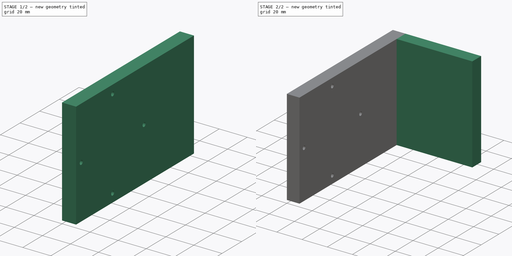
[diagram: build sequence overview — one tinted view per stage of 2, left to right]
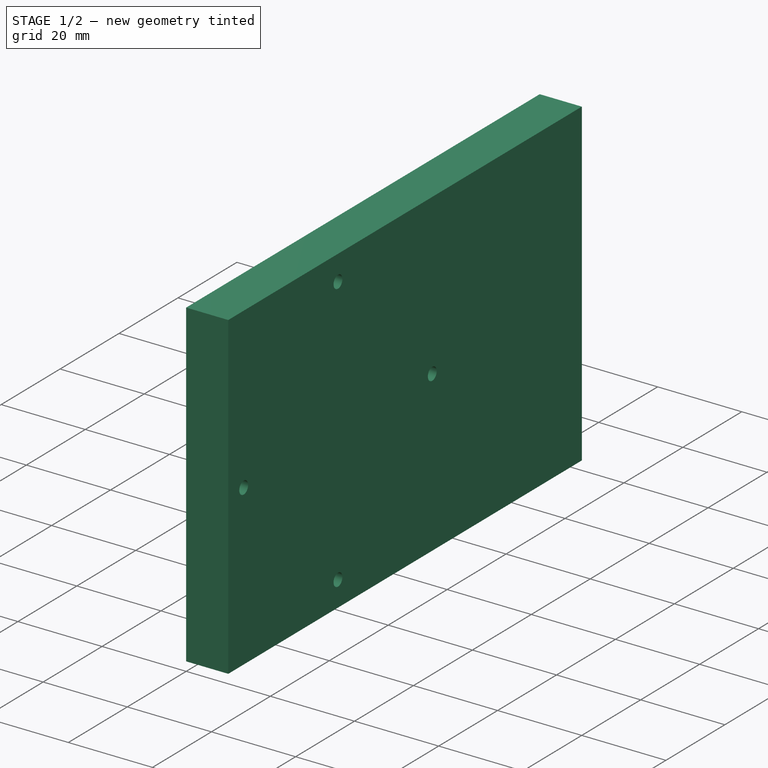
[diagram: stage 1 of 2 — iso view after this stage's code; geometry added in this stage tinted green]
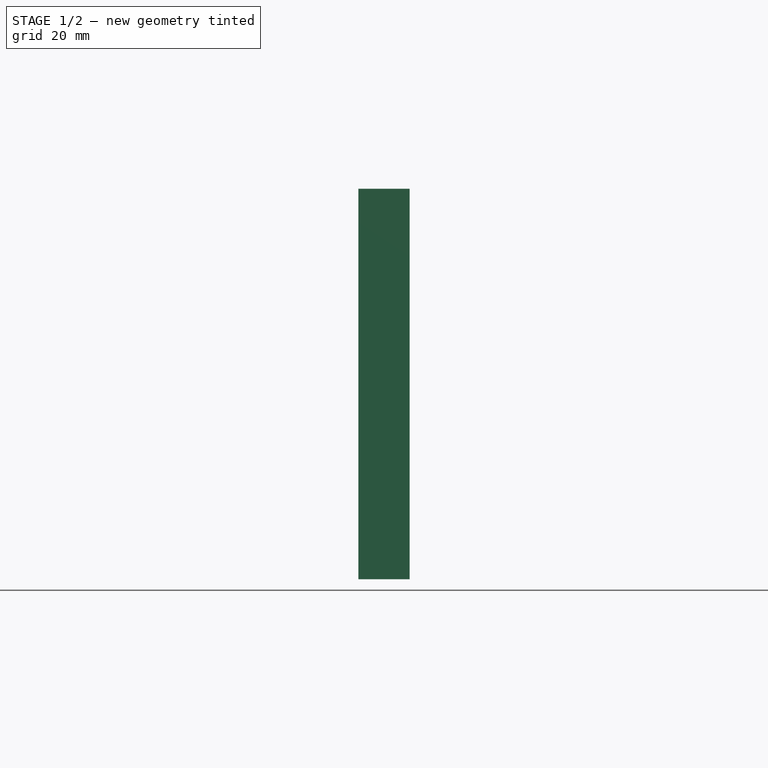
[diagram: stage 1 of 2 — front view after this stage's code; geometry added in this stage tinted green]
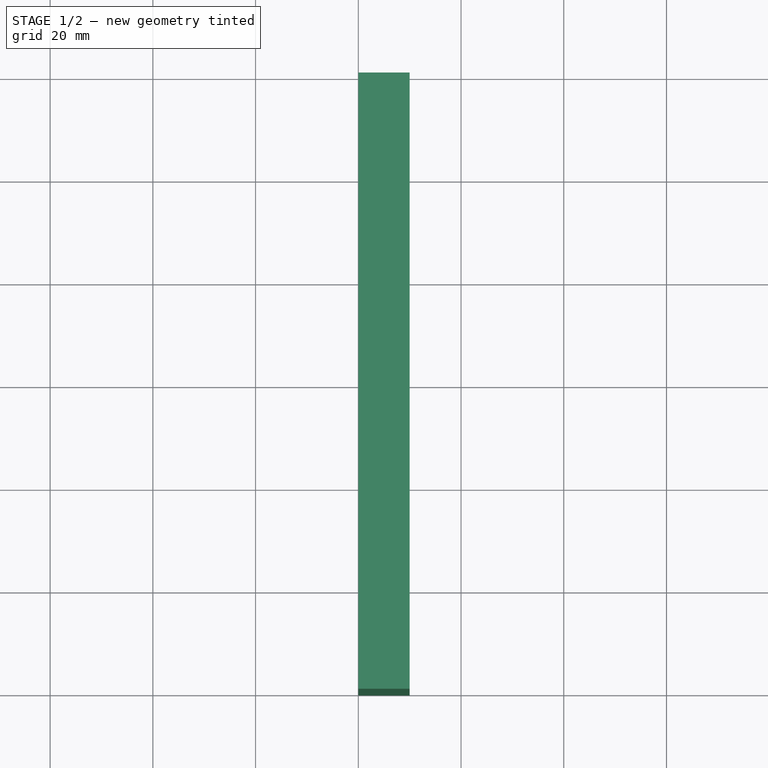
[diagram: stage 1 of 2 — top view after this stage's code; geometry added in this stage tinted green]
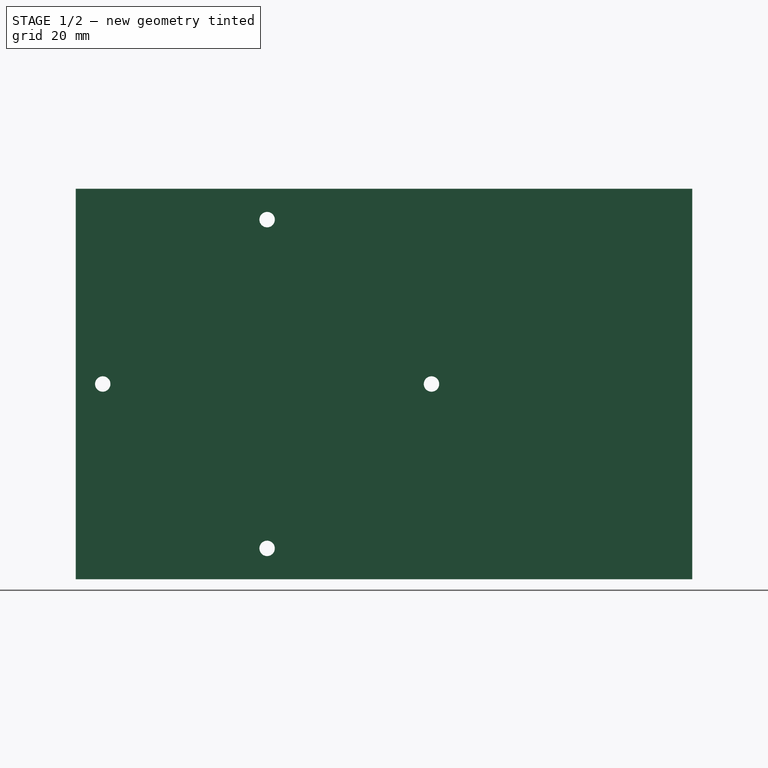
[diagram: stage 1 of 2 — right view after this stage's code; geometry added in this stage tinted green]
FCSTD DOCUMENT  (FreeCAD 0.20R29177 (Git))
Label: cameraStand
License: All rights reserved
LicenseURL: http://en.wikipedia.org/wiki/All_rights_reserved
objects: Sketcher::SketchObject×2, PartDesign::Pad×2, Spreadsheet::Sheet×1, PartDesign::Body×1
note: 7 computed .brp shape members not serialized (recipe doc carries the construction recipe); baked Part::Feature solids carry a one-line shape summary decoded from their .brp

FEATURE [Sketcher::SketchObject] Sketch001
  FullyConstrained = false
  MapMode = 5
  Placement = pos=(0,0,0) rot=(0.57735,0.57735,0.57735;2.0944rad)
  Support = -> [YZ_Plane]
  expr: Constraints[0] = Spreadsheet.screwHolderR
  expr: Constraints[13] = Spreadsheet.screwHolderR * 2
  expr: Constraints[1] = Spreadsheet.screwHolderR * 2
  sketch-geometry (11):
    g0: Circle CenterX=-82.7561 CenterY=0 CenterZ=0 NormalX=0 NormalY=0 NormalZ=1 AngleXU=0 Radius=32
    g1: LineSegment StartX=-82.7561 StartY=32 StartZ=0 EndX=-82.7561 EndY=-32 EndZ=0
    g2: LineSegment StartX=-50.7561 StartY=3.69985e-07 StartZ=0 EndX=-114.756 EndY=3.69985e-07 EndZ=0
    g3: Circle CenterX=-82.7561 CenterY=32 CenterZ=0 NormalX=0 NormalY=0 NormalZ=1 AngleXU=0 Radius=1.5
    g4: Circle CenterX=-114.756 CenterY=3.69985e-07 CenterZ=0 NormalX=0 NormalY=0 NormalZ=1 AngleXU=0 Radius=1.5
    g5: Circle CenterX=-50.7561 CenterY=3.69985e-07 CenterZ=0 NormalX=0 NormalY=0 NormalZ=1 AngleXU=0 Radius=1.5
    g6: Circle CenterX=-82.7561 CenterY=-32 CenterZ=0 NormalX=0 NormalY=0 NormalZ=1 AngleXU=0 Radius=1.5
    g7: LineSegment StartX=-120 StartY=38 StartZ=0 EndX=0 EndY=38 EndZ=0
    g8: LineSegment StartX=0 StartY=38 StartZ=0 EndX=0 EndY=-38 EndZ=0
    g9: LineSegment StartX=0 StartY=-38 StartZ=0 EndX=-120 EndY=-38 EndZ=0
    g10: LineSegment StartX=-120 StartY=-38 StartZ=0 EndX=-120 EndY=38 EndZ=0
  constraints (30):
    c: Radius(g0) = 32
    c: DistanceY(g1,g1) = 64
    c: Coincident(g3,g1)
    c: Coincident(g4,g2)
    c: Coincident(g5,g2)
    c: Coincident(g6,g1)
    c: Equal(g5,g4)
    c: Equal(g5,g6)
    c: Equal(g5,g3)
    c: Radius(g5) = 1.5
    c: Parallel(g1,g-2)
    c: Parallel(g2,g-1)
    c: PointOnObject(g5,g0)
    c: DistanceX(g2,g2) = 64
    c: PointOnObject(g4,g0)
    c: PointOnObject(g3,g0)
    c: PointOnObject(g0,g1)
    c: PointOnObject(g0,g-1)
    c: Coincident(g7,g8)
    c: Coincident(g8,g9)
    c: Coincident(g9,g10)
    c: Coincident(g10,g7)
    c: Horizontal(g7)
    c: Horizontal(g9)
    c: Vertical(g8)
    c: Vertical(g10)
    c: PointOnObject(g8,g-2)
    c: DistanceX(g7,g7) = 120
    c: DistanceY(g8,g8) = 76
    c: DistanceY(g-1,g7) = 38
FEATURE [Spreadsheet::Sheet] Spreadsheet
  cells = A2=screwHolderR; B2(screwHolderR)=32
FEATURE [PartDesign::Pad] Pad
  Direction = (1,-2e-16,3e-16)
  Length = 10
  Length2 = 10
  Placement = pos=(0,0,0) rot=(0.57735,0.57735,0.57735;2.0944rad)
  Profile = -> Sketch001
  ReferenceAxis = -> Sketch001 [N_Axis]
  Type = 0
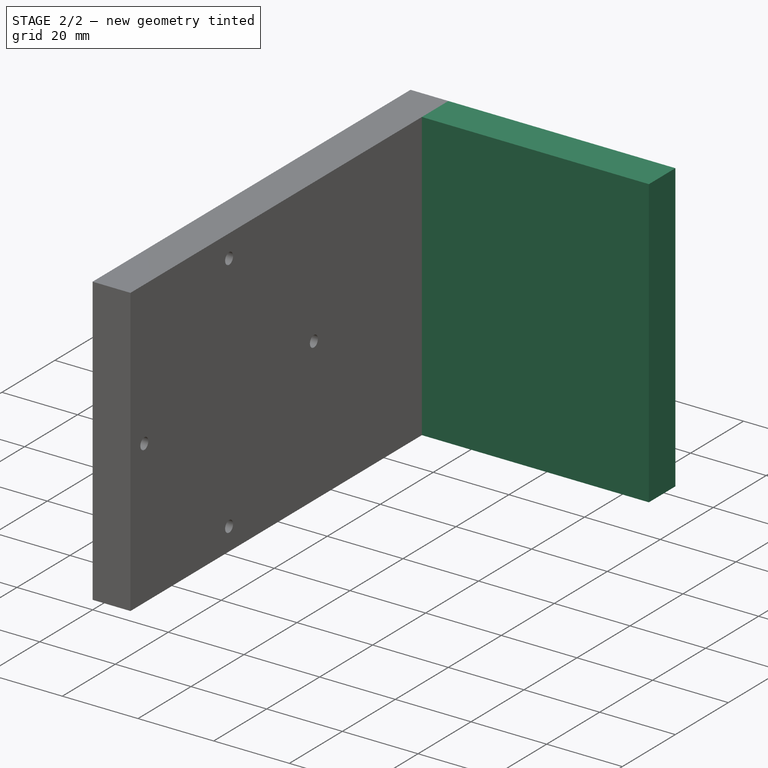
[diagram: stage 2 of 2 — iso view after this stage's code; geometry added in this stage tinted green]
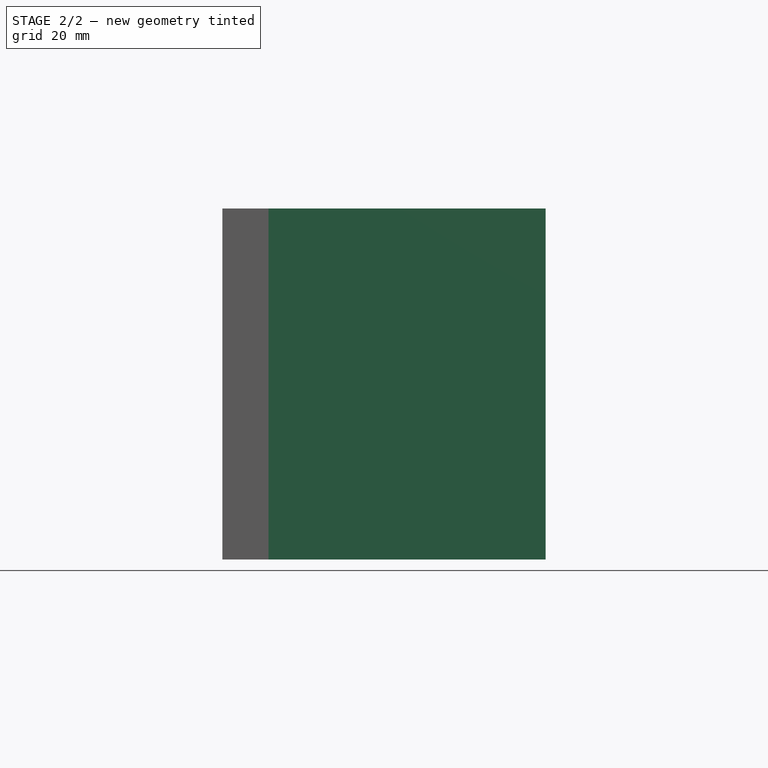
[diagram: stage 2 of 2 — front view after this stage's code; geometry added in this stage tinted green]
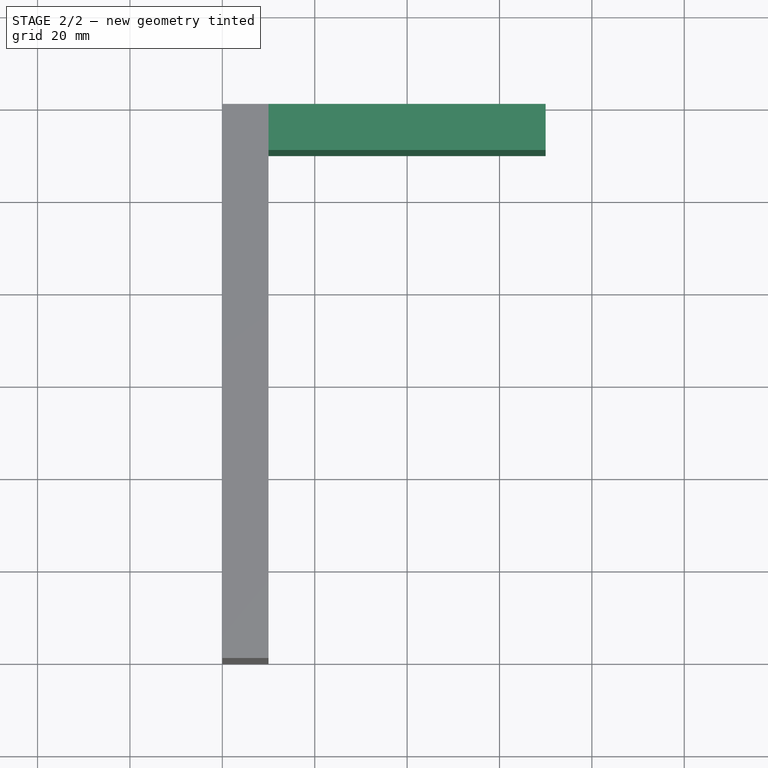
[diagram: stage 2 of 2 — top view after this stage's code; geometry added in this stage tinted green]
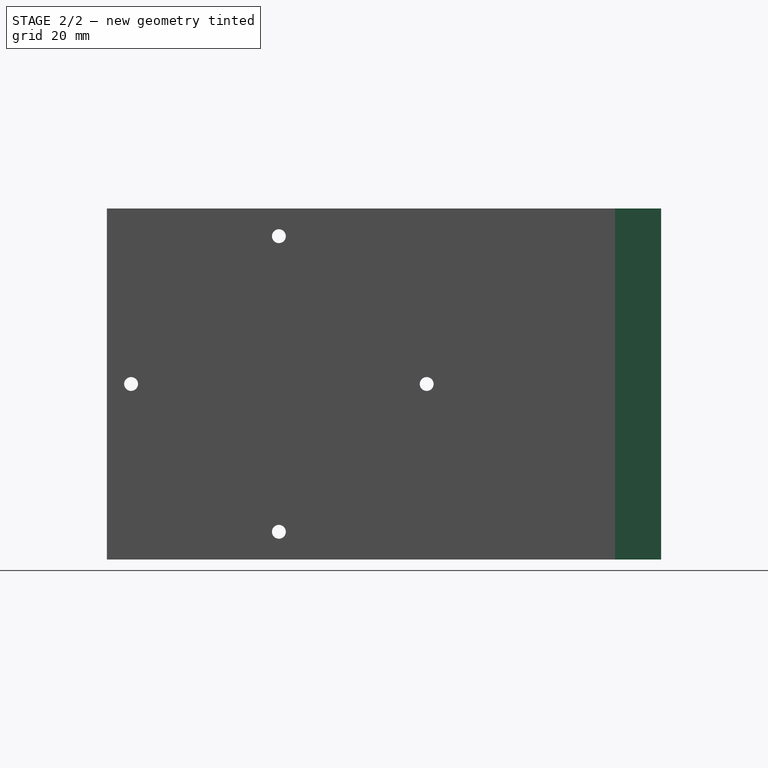
[diagram: stage 2 of 2 — right view after this stage's code; geometry added in this stage tinted green]
FEATURE [Sketcher::SketchObject] Sketch
  ExternalGeometry = -> [Pad]
  FullyConstrained = true
  MapMode = 5
  Placement = pos=(0,0,0) rot=(1,0,0;1.5708rad)
  Support = -> [XZ_Plane]
  sketch-geometry (4):
    g0: LineSegment StartX=-1.42e-14 StartY=38 StartZ=0 EndX=70 EndY=38 EndZ=0
    g1: LineSegment StartX=70 StartY=38 StartZ=0 EndX=70 EndY=-38 EndZ=0
    g2: LineSegment StartX=70 StartY=-38 StartZ=0 EndX=-1.42e-14 EndY=-38 EndZ=0
    g3: LineSegment StartX=-1.42e-14 StartY=-38 StartZ=0 EndX=-1.42e-14 EndY=38 EndZ=0
  constraints (11):
    c: Coincident(g0,g1)
    c: Coincident(g1,g2)
    c: Coincident(g2,g3)
    c: Coincident(g3,g0)
    c: Horizontal(g0)
    c: Horizontal(g2)
    c: Vertical(g1)
    c: Vertical(g3)
    c: Coincident(g0,g-5)
    c: PointOnObject(g-6,g2)
    c: DistanceX(g0,g0) = 70
FEATURE [PartDesign::Pad] Pad001
  BaseFeature = -> Pad
  Direction = (0,-1,2e-16)
  Length = 10
  Length2 = 10
  Placement = pos=(0,0,0) rot=(0.57735,0.57735,0.57735;2.0944rad)
  Profile = -> Sketch
  ReferenceAxis = -> Sketch [N_Axis]
  Type = 0
FEATURE [PartDesign::Body] Body
  Group = -> [Sketch001,Pad,Sketch,Pad001]
  Origin = -> Origin
  Tip = -> Pad001
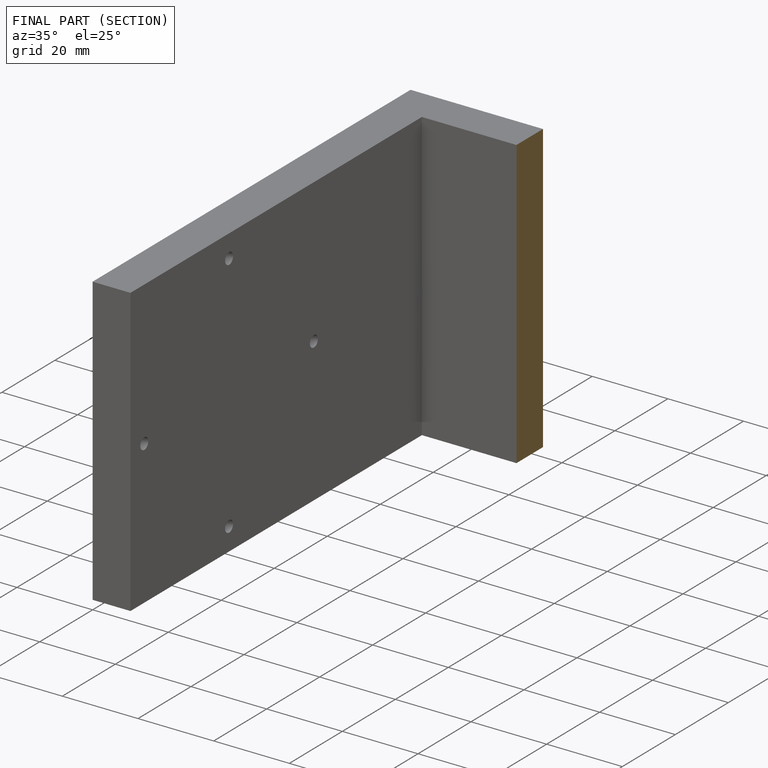
[diagram: finished part — half-section view (interior)]
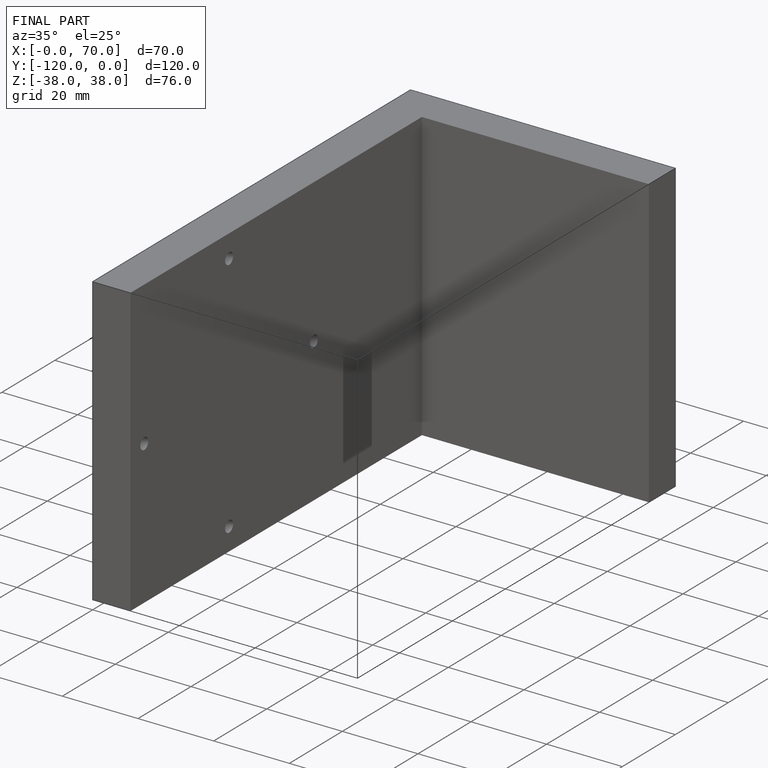
[diagram: finished part — iso view with bounding-box wireframe]
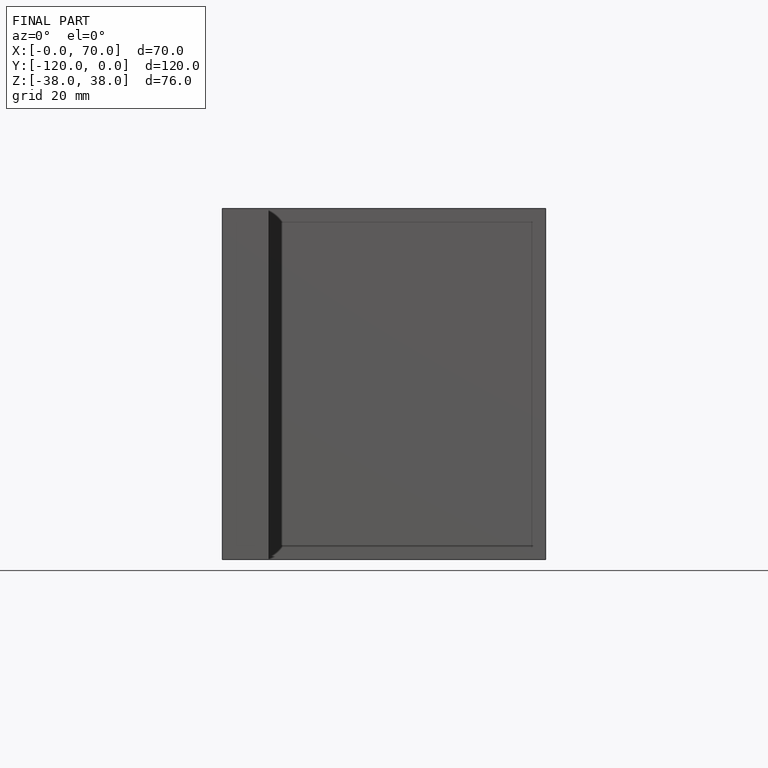
[diagram: finished part — front view with bounding-box wireframe]
